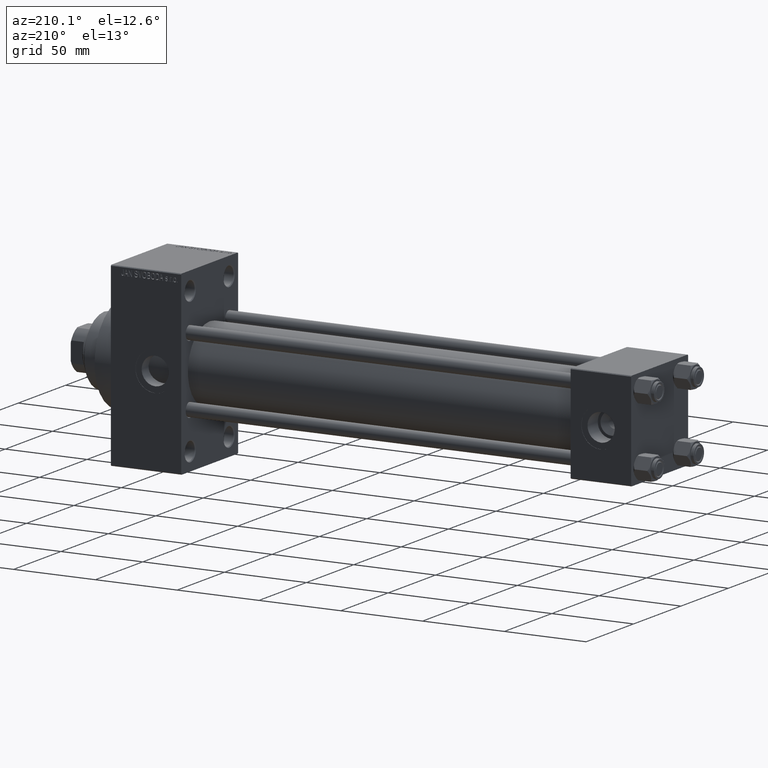
[diagram: clean part render]
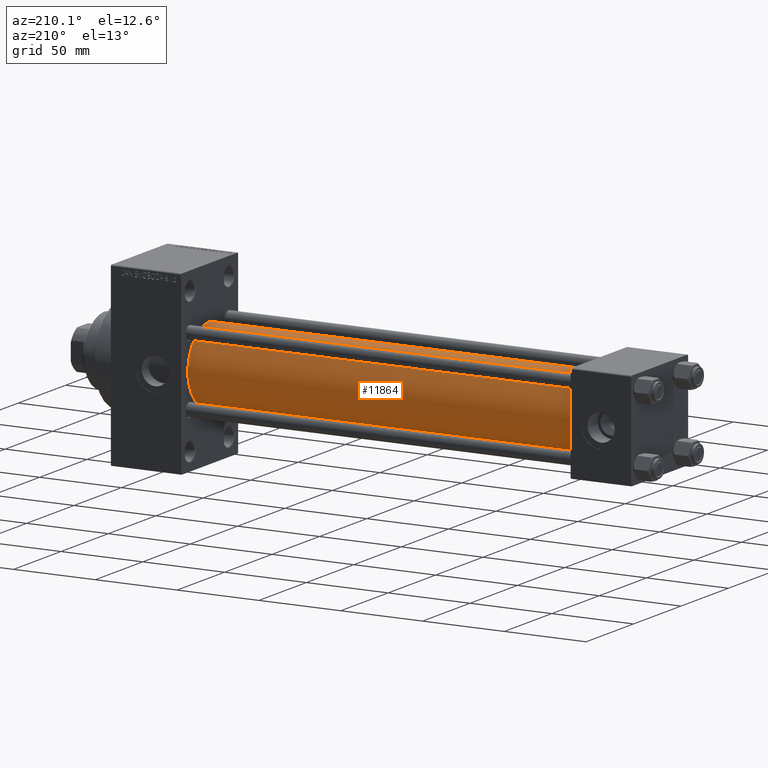
[diagram: same view with one face highlighted and labeled with its STEP entity id]
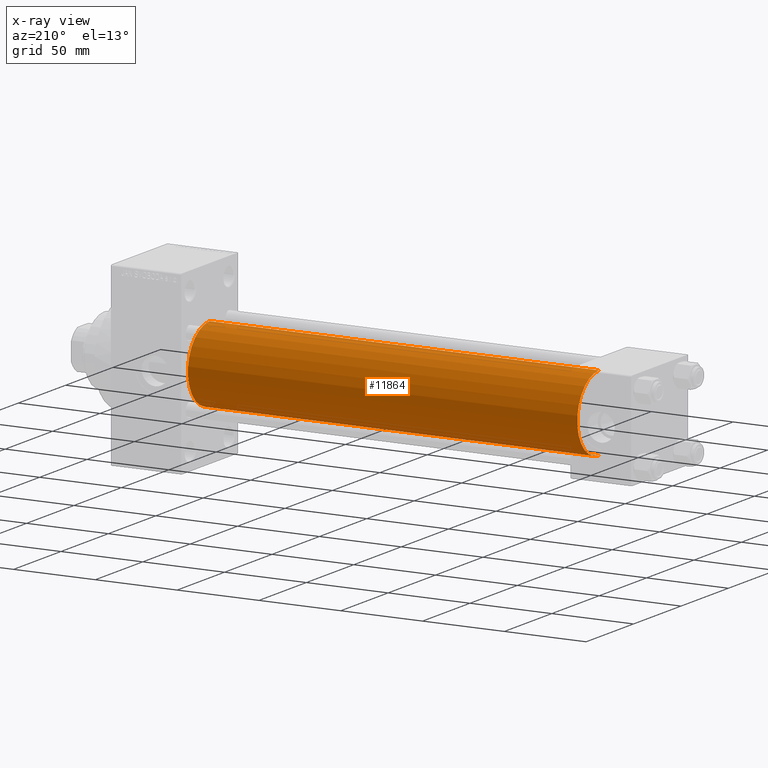
[diagram: x-ray of the same camera — body ghosted, the highlighted face saturated]
A machine part, auxiliary view. The second image highlights one B-rep face of the part: STEP entity #11864.
The next image is the same camera in x-ray: the body ghosted, the highlighted face saturated — about 0% of this face is hidden behind the body in this view.
In plain terms, the highlighted cylindrical surface (partial cylindrical patch) has radius 23 mm, axis along (-1, -0, -0).
Its self-contained STEP definition (entity closure, byte-faithful):
#1083 = CARTESIAN_POINT ( 'NONE',  ( 274.9999999999999432, -2.602085213965210642E-15, 23.00000000000000000 ) ) ;
#1194 = VERTEX_POINT ( 'NONE', #21393 ) ;
#1347 = CARTESIAN_POINT ( 'NONE',  ( 274.9999999999999432, 2.146024240737016609E-16, -23.00000000000000000 ) ) ;
#1586 = DIRECTION ( 'NONE',  ( 1.000000000000000000, 0.000000000000000000, 0.000000000000000000 ) ) ;
#6182 = VERTEX_POINT ( 'NONE', #30976 ) ;
#9321 = DIRECTION ( 'NONE',  ( 0.000000000000000000, 0.000000000000000000, -1.000000000000000000 ) ) ;
#11864 = ADVANCED_FACE ( 'NONE', ( #35997 ), #31791, .T. ) ;
#12498 = VECTOR ( 'NONE', #27718, 1000.000000000000000 ) ;
#12569 = CARTESIAN_POINT ( 'NONE',  ( 274.9999999999999432, -2.602085213965210642E-15, 0.000000000000000000 ) ) ;
#14220 = CIRCLE ( 'NONE', #19803, 23.00000000000000000 ) ;
#16325 = AXIS2_PLACEMENT_3D ( 'NONE', #16575, #21027, #36245 ) ;
#16575 = CARTESIAN_POINT ( 'NONE',  ( 274.9999999999999432, -2.602085213965210642E-15, 0.000000000000000000 ) ) ;
#19577 = AXIS2_PLACEMENT_3D ( 'NONE', #30817, #27074, #42278 ) ;
#19602 = ORIENTED_EDGE ( 'NONE', *, *, #37250, .T. ) ;
#19803 = AXIS2_PLACEMENT_3D ( 'NONE', #12569, #1586, #9321 ) ;
#19894 = ORIENTED_EDGE ( 'NONE', *, *, #38818, .T. ) ;
#21027 = DIRECTION ( 'NONE',  ( -1.000000000000000000, -0.000000000000000000, -0.000000000000000000 ) ) ;
#21393 = CARTESIAN_POINT ( 'NONE',  ( 37.00000000000000711, 2.146024240737016609E-16, -23.00000000000000000 ) ) ;
#22639 = EDGE_CURVE ( 'NONE', #26217, #6182, #14220, .T. ) ;
#23053 = ORIENTED_EDGE ( 'NONE', *, *, #24215, .F. ) ;
#24215 = EDGE_CURVE ( 'NONE', #6182, #41374, #39445, .T. ) ;
#26217 = VERTEX_POINT ( 'NONE', #1347 ) ;
#27074 = DIRECTION ( 'NONE',  ( 1.000000000000000000, -0.000000000000000000, 0.000000000000000000 ) ) ;
#27718 = DIRECTION ( 'NONE',  ( -1.000000000000000000, -0.000000000000000000, -0.000000000000000000 ) ) ;
#28335 = CIRCLE ( 'NONE', #19577, 23.00000000000000000 ) ;
#30817 = CARTESIAN_POINT ( 'NONE',  ( 37.00000000000000711, -2.602085213965210642E-15, 0.000000000000000000 ) ) ;
#30976 = CARTESIAN_POINT ( 'NONE',  ( 274.9999999999999432, -2.602085213965210642E-15, 23.00000000000000000 ) ) ;
#31702 = LINE ( 'NONE', #43151, #12498 ) ;
#31791 = CYLINDRICAL_SURFACE ( 'NONE', #16325, 23.00000000000000000 ) ;
#32666 = VECTOR ( 'NONE', #46690, 1000.000000000000000 ) ;
#33013 = EDGE_LOOP ( 'NONE', ( #44366, #19602, #19894, #23053 ) ) ;
#35997 = FACE_OUTER_BOUND ( 'NONE', #33013, .T. ) ;
#36245 = DIRECTION ( 'NONE',  ( 0.000000000000000000, 0.000000000000000000, 1.000000000000000000 ) ) ;
#37250 = EDGE_CURVE ( 'NONE', #26217, #1194, #31702, .T. ) ;
#38818 = EDGE_CURVE ( 'NONE', #1194, #41374, #28335, .T. ) ;
#39445 = LINE ( 'NONE', #1083, #32666 ) ;
#39614 = CARTESIAN_POINT ( 'NONE',  ( 37.00000000000000711, -2.602085213965210642E-15, 23.00000000000000000 ) ) ;
#41374 = VERTEX_POINT ( 'NONE', #39614 ) ;
#42278 = DIRECTION ( 'NONE',  ( 0.000000000000000000, 0.000000000000000000, 1.000000000000000000 ) ) ;
#43151 = CARTESIAN_POINT ( 'NONE',  ( 274.9999999999999432, 2.146024240737016609E-16, -23.00000000000000000 ) ) ;
#44366 = ORIENTED_EDGE ( 'NONE', *, *, #22639, .F. ) ;
#46690 = DIRECTION ( 'NONE',  ( -1.000000000000000000, -0.000000000000000000, -0.000000000000000000 ) ) ;